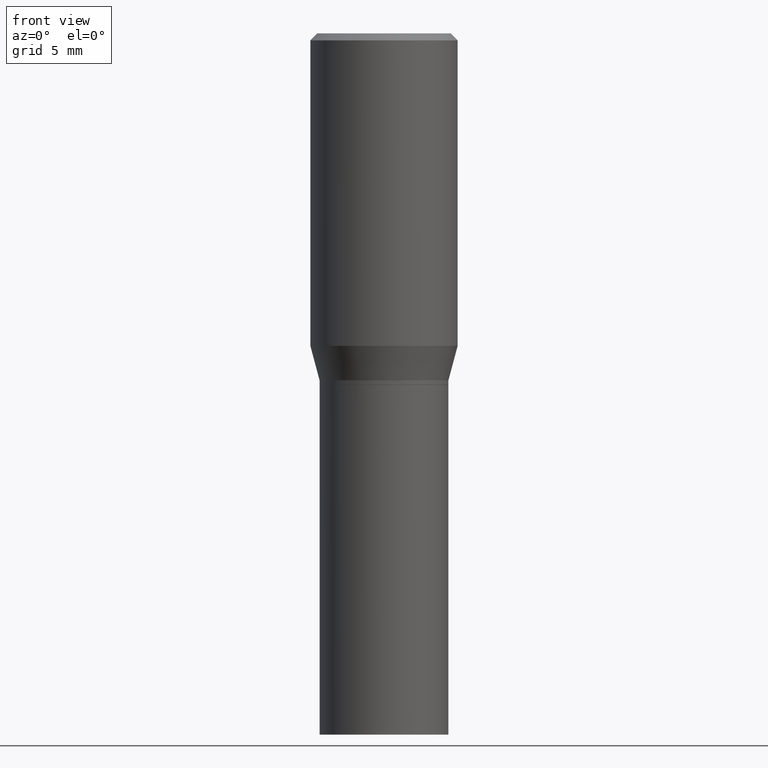
[diagram: clean part render]
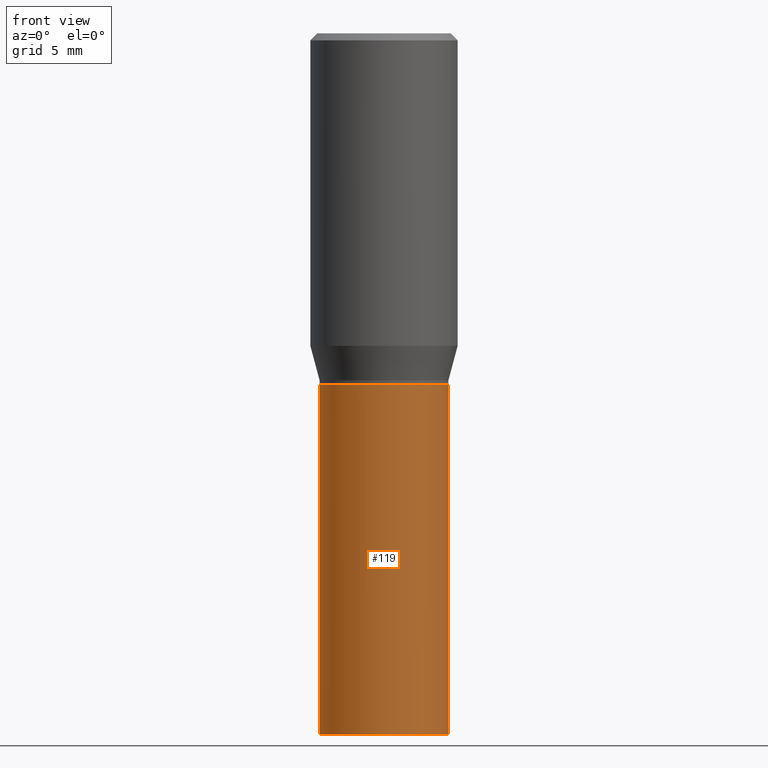
[diagram: same view with one face highlighted and labeled with its STEP entity id]
A machine part, front view. The second image highlights one B-rep face of the part: STEP entity #119.
In plain terms, the highlighted cylindrical surface (partial cylindrical patch) has radius 3.5001 mm, axis along (-0, 0, 1).
Its self-contained STEP definition (entity closure, byte-faithful):
#13 = VERTEX_POINT ( 'NONE', #393 ) ;
#15 = LINE ( 'NONE', #343, #160 ) ;
#42 = DIRECTION ( 'NONE',  ( 1.000000000000000000, -6.982962677686265922E-15, 0.000000000000000000 ) ) ;
#46 = DIRECTION ( 'NONE',  ( -2.445468806185136597E-29, 3.491481338843145583E-15, 1.000000000000000000 ) ) ;
#47 = DIRECTION ( 'NONE',  ( -2.445468806185136877E-29, 3.491481338843145188E-15, 1.000000000000000000 ) ) ;
#59 = CARTESIAN_POINT ( 'NONE',  ( 0.1378000000000000058, -6.199474265249886443E-15, -1.500000000000000222 ) ) ;
#72 = DIRECTION ( 'NONE',  ( -2.445468806185136597E-29, 3.491481338843145583E-15, 1.000000000000000000 ) ) ;
#108 = CYLINDRICAL_SURFACE ( 'NONE', #244, 0.1378000000000000058 ) ;
#113 = DIRECTION ( 'NONE',  ( 1.000000000000000000, -6.982962677686265922E-15, 0.000000000000000000 ) ) ;
#119 = ADVANCED_FACE ( 'NONE', ( #430 ), #108, .T. ) ;
#121 = VERTEX_POINT ( 'NONE', #266 ) ;
#131 = CARTESIAN_POINT ( 'NONE',  ( -0.1378000000000000058, 9.791278898774180975E-16, -6.778292554371260034E-30 ) ) ;
#142 = VERTEX_POINT ( 'NONE', #232 ) ;
#149 = EDGE_CURVE ( 'NONE', #13, #182, #436, .T. ) ;
#150 = ORIENTED_EDGE ( 'NONE', *, *, #149, .T. ) ;
#160 = VECTOR ( 'NONE', #369, 39.37007874015748143 ) ;
#165 = DIRECTION ( 'NONE',  ( -2.445468806185136597E-29, 3.491481338843145583E-15, 1.000000000000000000 ) ) ;
#166 = ORIENTED_EDGE ( 'NONE', *, *, #216, .F. ) ;
#182 = VERTEX_POINT ( 'NONE', #59 ) ;
#216 = EDGE_CURVE ( 'NONE', #142, #121, #401, .T. ) ;
#229 = DIRECTION ( 'NONE',  ( 1.000000000000000000, -6.982962677686267499E-15, 4.876176775795935793E-29 ) ) ;
#232 = CARTESIAN_POINT ( 'NONE',  ( -0.1378000000000000058, -2.952280097659963937E-15, -0.7520000000000001128 ) ) ;
#242 = AXIS2_PLACEMENT_3D ( 'NONE', #332, #46, #42 ) ;
#244 = AXIS2_PLACEMENT_3D ( 'NONE', #314, #165, #229 ) ;
#266 = CARTESIAN_POINT ( 'NONE',  ( 0.1378000000000000058, -3.587846223795212974E-15, -0.7520000000000001128 ) ) ;
#279 = EDGE_LOOP ( 'NONE', ( #344, #150, #294, #166 ) ) ;
#294 = ORIENTED_EDGE ( 'NONE', *, *, #465, .T. ) ;
#314 = CARTESIAN_POINT ( 'NONE',  ( 0.000000000000000000, 0.000000000000000000, 0.000000000000000000 ) ) ;
#324 = CARTESIAN_POINT ( 'NONE',  ( 1.838992542251222813E-29, -2.625593966810045497E-15, -0.7520000000000001128 ) ) ;
#332 = CARTESIAN_POINT ( 'NONE',  ( 3.668203209277704895E-29, -5.237222008264718177E-15, -1.500000000000000222 ) ) ;
#343 = CARTESIAN_POINT ( 'NONE',  ( 0.1378000000000000058, -9.622522569851676742E-16, 6.719371597046799937E-30 ) ) ;
#344 = ORIENTED_EDGE ( 'NONE', *, *, #424, .F. ) ;
#359 = AXIS2_PLACEMENT_3D ( 'NONE', #324, #72, #113 ) ;
#369 = DIRECTION ( 'NONE',  ( -2.445468806185136877E-29, 3.491481338843145188E-15, 1.000000000000000000 ) ) ;
#374 = LINE ( 'NONE', #131, #466 ) ;
#393 = CARTESIAN_POINT ( 'NONE',  ( -0.1378000000000000058, -2.952280097659963937E-15, -1.500000000000000222 ) ) ;
#401 = CIRCLE ( 'NONE', #359, 0.1378000000000000058 ) ;
#424 = EDGE_CURVE ( 'NONE', #13, #142, #374, .T. ) ;
#430 = FACE_OUTER_BOUND ( 'NONE', #279, .T. ) ;
#436 = CIRCLE ( 'NONE', #242, 0.1378000000000000058 ) ;
#465 = EDGE_CURVE ( 'NONE', #182, #121, #15, .T. ) ;
#466 = VECTOR ( 'NONE', #47, 39.37007874015748143 ) ;